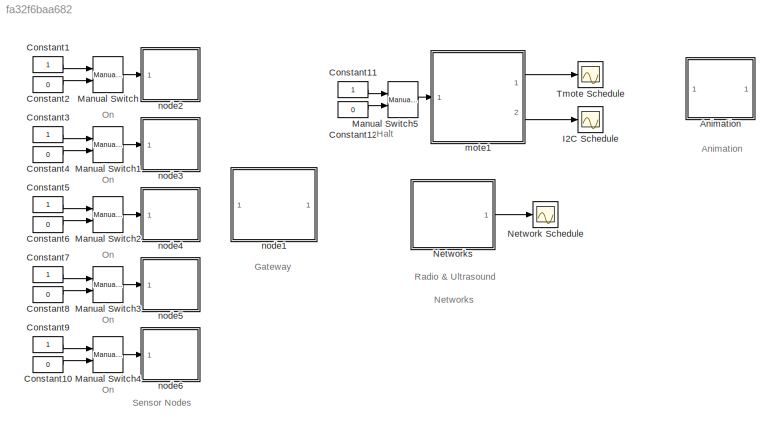
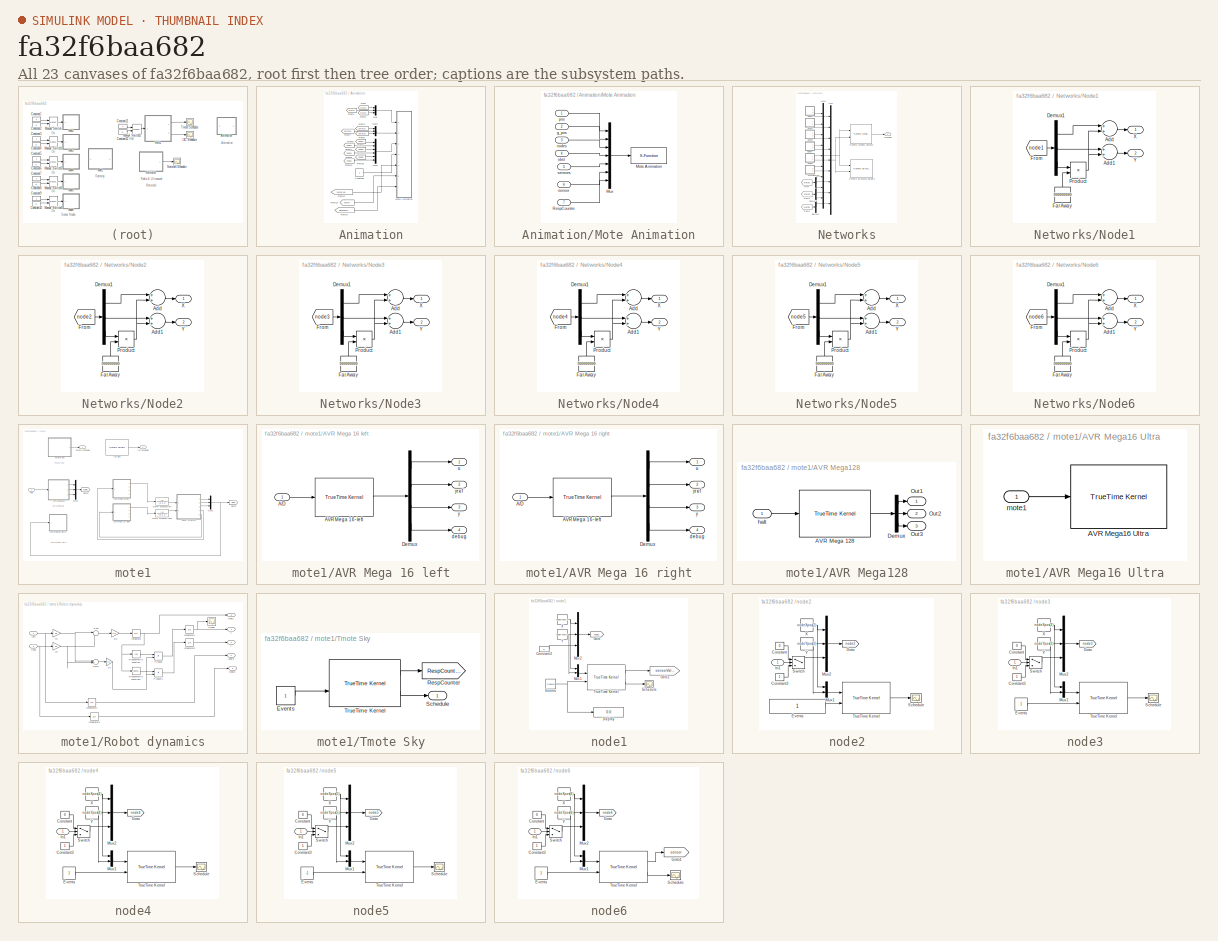
[diagram: thumbnail index - all 23 canvases of the model, root first then tree order]
MODEL slx_fa32f6baa682
KIND model
CONFIG InitFcn = init
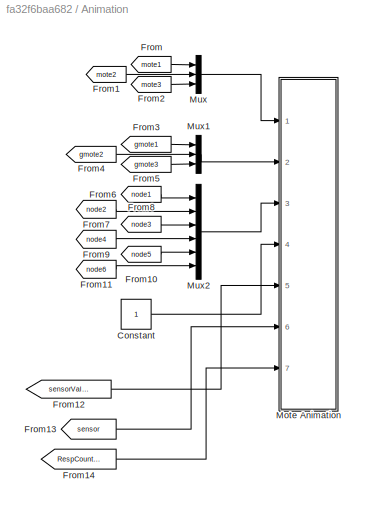
BLOCK [SubSystem] Animation
  FunctionWithSeparateData = off
  MaskHideContents = off
  MinAlgLoopOccurrences = off
  Opaque = off
  Ports = []
  PropExecContextOutsideSubsystem = off
  RTWSystemCode = Auto
  RequestExecContextInheritance = off
BLOCK [Constant] Animation/Constant
BLOCK [From] Animation/From
  CloseFcn = tagdialog Close
  GotoTag = mote1
  TagVisibility = global
BLOCK [From] Animation/From1
  CloseFcn = tagdialog Close
  GotoTag = mote2
BLOCK [From] Animation/From10
  CloseFcn = tagdialog Close
  GotoTag = node5
  TagVisibility = global
BLOCK [From] Animation/From11
  CloseFcn = tagdialog Close
  GotoTag = node6
  TagVisibility = global
BLOCK [From] Animation/From12
  CloseFcn = tagdialog Close
  GotoTag = sensorValues
  TagVisibility = global
BLOCK [From] Animation/From13
  CloseFcn = tagdialog Close
  GotoTag = sensor
  TagVisibility = global
BLOCK [From] Animation/From14
  CloseFcn = tagdialog Close
  GotoTag = RespCounter
  TagVisibility = global
BLOCK [From] Animation/From2
  CloseFcn = tagdialog Close
  GotoTag = mote3
BLOCK [From] Animation/From3
  CloseFcn = tagdialog Close
  GotoTag = gmote1
  TagVisibility = global
BLOCK [From] Animation/From4
  CloseFcn = tagdialog Close
  GotoTag = gmote2
BLOCK [From] Animation/From5
  CloseFcn = tagdialog Close
  GotoTag = gmote3
BLOCK [From] Animation/From6
  CloseFcn = tagdialog Close
  GotoTag = node1
  TagVisibility = global
BLOCK [From] Animation/From7
  CloseFcn = tagdialog Close
  GotoTag = node2
  TagVisibility = global
BLOCK [From] Animation/From8
  CloseFcn = tagdialog Close
  GotoTag = node3
  TagVisibility = global
BLOCK [From] Animation/From9
  CloseFcn = tagdialog Close
  GotoTag = node4
  TagVisibility = global
BLOCK [SubSystem] Animation/Mote Animation
  FunctionWithSeparateData = off
  MaskCallbackString = |||
  MaskEnableString = on,on,on,on
  MaskHideContents = off
  MaskIconFrame = on
  MaskIconOpaque = on
  MaskIconRotate = none
  MaskIconUnits = autoscale
  MaskPortRotate = default
  MaskPromptString = Number of Motes|xMax|YMax|Update period
  MaskStyleString = edit,edit,edit,edit
  MaskToolTipString = on,on,on,on
  MaskTunableValueString = on,on,on,on
  MaskValueString = nbrOfMotes|trackLength|trackWidth|0.1
  MaskVariables = numMotes=@1;xmax=@2;ymax=@3;ts=@4;
  MaskVisibilityString = on,on,on,on
  MinAlgLoopOccurrences = off
  Opaque = off
  Ports = [7]
  PropExecContextOutsideSubsystem = off
  RTWSystemCode = Auto
  RequestExecContextInheritance = off
BLOCK [S-Function] Animation/Mote Animation/Mote Animation
  DeleteFcn = if ~isempty(findobj('type','figure','name','dblpend1 Animation'));close('dblpend1 Animation'); end;
  EnableBusSupport = off
  FunctionName = moteanimation
  Parameters = [numMotes ts xmax ymax]
  Ports = [1]
BLOCK [Mux] Animation/Mote Animation/Mux
  DisplayOption = bar
  Inputs = 7
  Ports = [7, 1]
BLOCK [Inport] Animation/Mote Animation/RespCounter
  IconDisplay = Port number
  Port = 7
BLOCK [Inport] Animation/Mote Animation/g_pos
  IconDisplay = Port number
  Port = 2
BLOCK [Inport] Animation/Mote Animation/nodes
  IconDisplay = Port number
  Port = 3
BLOCK [Inport] Animation/Mote Animation/obst
  IconDisplay = Port number
  Port = 4
BLOCK [Inport] Animation/Mote Animation/pos
  IconDisplay = Port number
BLOCK [Inport] Animation/Mote Animation/sensor
  IconDisplay = Port number
  Port = 6
BLOCK [Inport] Animation/Mote Animation/sensors
  IconDisplay = Port number
  Port = 5
BLOCK [Mux] Animation/Mux
  DisplayOption = bar
  Inputs = [3 3 3]
  Ports = [3, 1]
BLOCK [Mux] Animation/Mux1
  DisplayOption = bar
  Inputs = [3 3 3]
  Ports = [3, 1]
BLOCK [Mux] Animation/Mux2
  DisplayOption = bar
  Inputs = 6
  Ports = [6, 1]
BLOCK [Constant] Constant1
BLOCK [Constant] Constant10
  Value = 0
BLOCK [Constant] Constant11
BLOCK [Constant] Constant12
  Value = 0
BLOCK [Constant] Constant2
  Value = 0
BLOCK [Constant] Constant3
BLOCK [Constant] Constant4
  Value = 0
BLOCK [Constant] Constant5
BLOCK [Constant] Constant6
  Value = 0
BLOCK [Constant] Constant7
BLOCK [Constant] Constant8
  Value = 0
BLOCK [Constant] Constant9
BLOCK [Scope] I2C Schedule
  DataFormat = StructureWithTime
  Floating = off
  LimitDataPoints = off
  NumInputPorts = 1
  Ports = [1]
  SaveName = nschedule1
  ShowLegends = off
  TimeRange = 5
  YMax = 5.5
  YMin = 1
  ZoomMode = xonly
BLOCK [Reference] Manual Switch  REF=simulink/Signal
Routing/Manual Switch
  Ports = [2, 1]
  SourceBlock = simulink/Signal\nRouting/Manual Switch
  SourceType = Manual Switch
  action = 0
  sw = 1
  varsize = off
BLOCK [Reference] Manual Switch1  REF=simulink/Signal
Routing/Manual Switch
  Ports = [2, 1]
  SourceBlock = simulink/Signal\nRouting/Manual Switch
  SourceType = Manual Switch
  action = 0
  sw = 1
  varsize = off
BLOCK [Reference] Manual Switch2  REF=simulink/Signal
Routing/Manual Switch
  Ports = [2, 1]
  SourceBlock = simulink/Signal\nRouting/Manual Switch
  SourceType = Manual Switch
  action = 0
  sw = 1
  varsize = off
BLOCK [Reference] Manual Switch3  REF=simulink/Signal
Routing/Manual Switch
  Ports = [2, 1]
  SourceBlock = simulink/Signal\nRouting/Manual Switch
  SourceType = Manual Switch
  action = 0
  sw = 1
  varsize = off
BLOCK [Reference] Manual Switch4  REF=simulink/Signal
Routing/Manual Switch
  Ports = [2, 1]
  SourceBlock = simulink/Signal\nRouting/Manual Switch
  SourceType = Manual Switch
  action = 0
  sw = 1
  varsize = off
BLOCK [Reference] Manual Switch5  REF=simulink/Signal
Routing/Manual Switch
  Ports = [2, 1]
  SourceBlock = simulink/Signal\nRouting/Manual Switch
  SourceType = Manual Switch
  action = 0
  sw = 1
  varsize = off
BLOCK [Scope] Network Schedule
  DataFormat = StructureWithTime
  Floating = off
  LimitDataPoints = off
  NumInputPorts = 1
  Ports = [1]
  SaveName = nschedule
  ShowLegends = off
  TimeRange = 5
  YMax = 9
  YMin = 1
  ZoomMode = xonly
BLOCK [SubSystem] Networks
  FunctionWithSeparateData = off
  MaskHideContents = off
  MinAlgLoopOccurrences = off
  Opaque = off
  Ports = [0, 1]
  PropExecContextOutsideSubsystem = off
  RTWSystemCode = Auto
  RequestExecContextInheritance = off
BLOCK [Demux] Networks/Demux2
  Outputs = 3
  Ports = [1, 3]
BLOCK [Demux] Networks/Demux3
  Outputs = 3
  Ports = [1, 3]
BLOCK [Demux] Networks/Demux4
  Outputs = 3
  Ports = [1, 3]
BLOCK [From] Networks/From
  CloseFcn = tagdialog Close
  GotoTag = mote1
  TagVisibility = global
BLOCK [From] Networks/From5
  CloseFcn = tagdialog Close
  GotoTag = mote2
BLOCK [From] Networks/From6
  CloseFcn = tagdialog Close
  GotoTag = mote3
BLOCK [Mux] Networks/Mux
  DisplayOption = bar
  Inputs = 9
  Ports = [9, 1]
BLOCK [Mux] Networks/Mux1
  DisplayOption = bar
  Inputs = 9
  Ports = [9, 1]
BLOCK [SubSystem] Networks/Node1
  FunctionWithSeparateData = off
  MaskEnableString = on
  MaskHideContents = off
  MaskIconFrame = on
  MaskIconOpaque = on
  MaskIconRotate = none
  MaskIconUnits = autoscale
  MaskInitialization = set_param(strcat(gcb,'/From'),'GotoTag',strcat('node',num2str(nodeNbr)));
  MaskPortRotate = default
  MaskPromptString = nodeNbr
  MaskStyleString = edit
  MaskToolTipString = on
  MaskTunableValueString = on
  MaskValueString = 1
  MaskVariables = nodeNbr=@1;
  MaskVisibilityString = on
  MinAlgLoopOccurrences = off
  Opaque = off
  Ports = [0, 2]
  PropExecContextOutsideSubsystem = off
  RTWSystemCode = Auto
  RequestExecContextInheritance = off
BLOCK [Sum] Networks/Node1/Add
  Ports = [2, 1]
  SaturateOnIntegerOverflow = off
BLOCK [Sum] Networks/Node1/Add1
  Ports = [2, 1]
  SaturateOnIntegerOverflow = off
BLOCK [Demux] Networks/Node1/Demux1
  Outputs = 3
  Ports = [1, 3]
BLOCK [Constant] Networks/Node1/FarAway
  Value = 999999999
BLOCK [From] Networks/Node1/From
  CloseFcn = tagdialog Close
  GotoTag = node1
  TagVisibility = global
BLOCK [Product] Networks/Node1/Product
  Ports = [2, 1]
  SaturateOnIntegerOverflow = off
BLOCK [Outport] Networks/Node1/X
  IconDisplay = Port number
BLOCK [Outport] Networks/Node1/Y
  IconDisplay = Port number
  Port = 2
BLOCK [SubSystem] Networks/Node2
  FunctionWithSeparateData = off
  MaskEnableString = on
  MaskHideContents = off
  MaskIconFrame = on
  MaskIconOpaque = on
  MaskIconRotate = none
  MaskIconUnits = autoscale
  MaskInitialization = set_param(strcat(gcb,'/From'),'GotoTag',strcat('node',num2str(nodeNbr)));
  MaskPortRotate = default
  MaskPromptString = nodeNbr
  MaskStyleString = edit
  MaskToolTipString = on
  MaskTunableValueString = on
  MaskValueString = 2
  MaskVariables = nodeNbr=@1;
  MaskVisibilityString = on
  MinAlgLoopOccurrences = off
  Opaque = off
  Ports = [0, 2]
  PropExecContextOutsideSubsystem = off
  RTWSystemCode = Auto
  RequestExecContextInheritance = off
BLOCK [Sum] Networks/Node2/Add
  Ports = [2, 1]
  SaturateOnIntegerOverflow = off
BLOCK [Sum] Networks/Node2/Add1
  Ports = [2, 1]
  SaturateOnIntegerOverflow = off
BLOCK [Demux] Networks/Node2/Demux1
  Outputs = 3
  Ports = [1, 3]
BLOCK [Constant] Networks/Node2/FarAway
  Value = 999999999
BLOCK [From] Networks/Node2/From
  CloseFcn = tagdialog Close
  GotoTag = node2
  TagVisibility = global
BLOCK [Product] Networks/Node2/Product
  Ports = [2, 1]
  SaturateOnIntegerOverflow = off
BLOCK [Outport] Networks/Node2/X
  IconDisplay = Port number
BLOCK [Outport] Networks/Node2/Y
  IconDisplay = Port number
  Port = 2
BLOCK [SubSystem] Networks/Node3
  FunctionWithSeparateData = off
  MaskEnableString = on
  MaskHideContents = off
  MaskIconFrame = on
  MaskIconOpaque = on
  MaskIconRotate = none
  MaskIconUnits = autoscale
  MaskInitialization = set_param(strcat(gcb,'/From'),'GotoTag',strcat('node',num2str(nodeNbr)));
  MaskPortRotate = default
  MaskPromptString = nodeNbr
  MaskStyleString = edit
  MaskToolTipString = on
  MaskTunableValueString = on
  MaskValueString = 3
  MaskVariables = nodeNbr=@1;
  MaskVisibilityString = on
  MinAlgLoopOccurrences = off
  Opaque = off
  Ports = [0, 2]
  PropExecContextOutsideSubsystem = off
  RTWSystemCode = Auto
  RequestExecContextInheritance = off
BLOCK [Sum] Networks/Node3/Add
  Ports = [2, 1]
  SaturateOnIntegerOverflow = off
BLOCK [Sum] Networks/Node3/Add1
  Ports = [2, 1]
  SaturateOnIntegerOverflow = off
BLOCK [Demux] Networks/Node3/Demux1
  Outputs = 3
  Ports = [1, 3]
BLOCK [Constant] Networks/Node3/FarAway
  Value = 999999999
BLOCK [From] Networks/Node3/From
  CloseFcn = tagdialog Close
  GotoTag = node3
  TagVisibility = global
BLOCK [Product] Networks/Node3/Product
  Ports = [2, 1]
  SaturateOnIntegerOverflow = off
BLOCK [Outport] Networks/Node3/X
  IconDisplay = Port number
BLOCK [Outport] Networks/Node3/Y
  IconDisplay = Port number
  Port = 2
BLOCK [SubSystem] Networks/Node4
  FunctionWithSeparateData = off
  MaskEnableString = on
  MaskHideContents = off
  MaskIconFrame = on
  MaskIconOpaque = on
  MaskIconRotate = none
  MaskIconUnits = autoscale
  MaskInitialization = set_param(strcat(gcb,'/From'),'GotoTag',strcat('node',num2str(nodeNbr)));
  MaskPortRotate = default
  MaskPromptString = nodeNbr
  MaskStyleString = edit
  MaskToolTipString = on
  MaskTunableValueString = on
  MaskValueString = 4
  MaskVariables = nodeNbr=@1;
  MaskVisibilityString = on
  MinAlgLoopOccurrences = off
  Opaque = off
  Ports = [0, 2]
  PropExecContextOutsideSubsystem = off
  RTWSystemCode = Auto
  RequestExecContextInheritance = off
BLOCK [Sum] Networks/Node4/Add
  Ports = [2, 1]
  SaturateOnIntegerOverflow = off
BLOCK [Sum] Networks/Node4/Add1
  Ports = [2, 1]
  SaturateOnIntegerOverflow = off
BLOCK [Demux] Networks/Node4/Demux1
  Outputs = 3
  Ports = [1, 3]
BLOCK [Constant] Networks/Node4/FarAway
  Value = 999999999
BLOCK [From] Networks/Node4/From
  CloseFcn = tagdialog Close
  GotoTag = node4
  TagVisibility = global
BLOCK [Product] Networks/Node4/Product
  Ports = [2, 1]
  SaturateOnIntegerOverflow = off
BLOCK [Outport] Networks/Node4/X
  IconDisplay = Port number
BLOCK [Outport] Networks/Node4/Y
  IconDisplay = Port number
  Port = 2
BLOCK [SubSystem] Networks/Node5
  FunctionWithSeparateData = off
  MaskEnableString = on
  MaskHideContents = off
  MaskIconFrame = on
  MaskIconOpaque = on
  MaskIconRotate = none
  MaskIconUnits = autoscale
  MaskInitialization = set_param(strcat(gcb,'/From'),'GotoTag',strcat('node',num2str(nodeNbr)));
  MaskPortRotate = default
  MaskPromptString = nodeNbr
  MaskStyleString = edit
  MaskToolTipString = on
  MaskTunableValueString = on
  MaskValueString = 5
  MaskVariables = nodeNbr=@1;
  MaskVisibilityString = on
  MinAlgLoopOccurrences = off
  Opaque = off
  Ports = [0, 2]
  PropExecContextOutsideSubsystem = off
  RTWSystemCode = Auto
  RequestExecContextInheritance = off
BLOCK [Sum] Networks/Node5/Add
  Ports = [2, 1]
  SaturateOnIntegerOverflow = off
BLOCK [Sum] Networks/Node5/Add1
  Ports = [2, 1]
  SaturateOnIntegerOverflow = off
BLOCK [Demux] Networks/Node5/Demux1
  Outputs = 3
  Ports = [1, 3]
BLOCK [Constant] Networks/Node5/FarAway
  Value = 999999999
BLOCK [From] Networks/Node5/From
  CloseFcn = tagdialog Close
  GotoTag = node5
  TagVisibility = global
BLOCK [Product] Networks/Node5/Product
  Ports = [2, 1]
  SaturateOnIntegerOverflow = off
BLOCK [Outport] Networks/Node5/X
  IconDisplay = Port number
BLOCK [Outport] Networks/Node5/Y
  IconDisplay = Port number
  Port = 2
BLOCK [SubSystem] Networks/Node6
  FunctionWithSeparateData = off
  MaskEnableString = on
  MaskHideContents = off
  MaskIconFrame = on
  MaskIconOpaque = on
  MaskIconRotate = none
  MaskIconUnits = autoscale
  MaskInitialization = set_param(strcat(gcb,'/From'),'GotoTag',strcat('node',num2str(nodeNbr)));
  MaskPortRotate = default
  MaskPromptString = nodeNbr
  MaskStyleString = edit
  MaskToolTipString = on
  MaskTunableValueString = on
  MaskValueString = 6
  MaskVariables = nodeNbr=@1;
  MaskVisibilityString = on
  MinAlgLoopOccurrences = off
  Opaque = off
  Ports = [0, 2]
  PropExecContextOutsideSubsystem = off
  RTWSystemCode = Auto
  RequestExecContextInheritance = off
BLOCK [Sum] Networks/Node6/Add
  Ports = [2, 1]
  SaturateOnIntegerOverflow = off
BLOCK [Sum] Networks/Node6/Add1
  Ports = [2, 1]
  SaturateOnIntegerOverflow = off
BLOCK [Demux] Networks/Node6/Demux1
  Outputs = 3
  Ports = [1, 3]
BLOCK [Constant] Networks/Node6/FarAway
  Value = 999999999
BLOCK [From] Networks/Node6/From
  CloseFcn = tagdialog Close
  GotoTag = node6
  TagVisibility = global
BLOCK [Product] Networks/Node6/Product
  Ports = [2, 1]
  SaturateOnIntegerOverflow = off
BLOCK [Outport] Networks/Node6/X
  IconDisplay = Port number
BLOCK [Outport] Networks/Node6/Y
  IconDisplay = Port number
  Port = 2
BLOCK [Outport] Networks/Schedule
  IconDisplay = Port number
BLOCK [Reference] Networks/TrueTime Ultrasound Network  REF=truetime/TrueTime Ultrasound  (lib defined in slx_0362a698a4ec)
Network
  Ports = [2]
  SourceBlock = truetime/TrueTime Ultrasound\nNetwork
  SourceType = Ultrasound Network
  nnodes = 9
  nwnbr = 2
  pinglength = 0.0
  reach = 260
  scheduleoutput = off
  speedofsound = 34400.0
BLOCK [Reference] Networks/TrueTime Wireless Network  REF=truetime/TrueTime Wireless   (lib defined in slx_0362a698a4ec)
Network
  Ports = [2, 1]
  SourceBlock = truetime/TrueTime Wireless \nNetwork
  SourceType = Wireless Network
  acktimeout = 0.000864
  error_threshold = errorCodingThreshold
  lossprob = 0
  minsize = 248
  nnodes = 9
  nwnbr = 1
  nwtype = 802.11b (WLAN)
  pathloss = pathloss
  poweroutput = off
  rate = 250000
  retrylimit = 3
  scheduleoutput = on
  seed = 0
  threshold = receiverThreshold
  transpower = transmitPower
  use_pathloss_function = default
BLOCK [Scope] Tmote Schedule
  DataFormat = StructureWithTime
  Floating = off
  LimitDataPoints = off
  NumInputPorts = 1
  Ports = [1]
  SaveName = nschedule2
  ShowLegends = off
  TimeRange = 5
  YMax = 9
  YMin = 1
  ZoomMode = xonly
BLOCK [SubSystem] mote1
  FunctionWithSeparateData = off
  MaskDisplay = image(imread('RBBot.jpg'))
  MaskEnableString = on
  MaskHideContents = off
  MaskIconFrame = on
  MaskIconOpaque = on
  MaskIconRotate = none
  MaskIconUnits = autoscale
  MaskPortRotate = default
  MaskPromptString = moteNbr
  MaskStyleString = edit
  MaskToolTipString = on
  MaskTunableValueString = on
  MaskValueString = 1
  MaskVariables = moteNbr=@1;
  MaskVisibilityString = on
  MinAlgLoopOccurrences = off
  Opaque = off
  Ports = [1, 2]
  PropExecContextOutsideSubsystem = off
  RTWSystemCode = Auto
  RequestExecContextInheritance = off
BLOCK [SubSystem] mote1/AVR Mega 16 left
  FunctionWithSeparateData = off
  MaskDisplay = image(imread('mega16.jpg'))
  MaskHideContents = off
  MaskIconFrame = on
  MaskIconOpaque = on
  MaskIconRotate = none
  MaskIconUnits = autoscale
  MaskPortRotate = default
  MinAlgLoopOccurrences = off
  Opaque = off
  Ports = [1, 4]
  PropExecContextOutsideSubsystem = off
  RTWSystemCode = Auto
  RequestExecContextInheritance = off
BLOCK [Inport] mote1/AVR Mega 16 left/A//D
  IconDisplay = Port number
BLOCK [Reference] mote1/AVR Mega 16 left/AVR Mega 16-left  REF=truetime/TrueTime Kernel  (lib defined in slx_0362a698a4ec)
  Ports = [1, 1]
  SourceBlock = truetime/TrueTime Kernel
  SourceType = Unknown
  args = 1
  battery = off
  clockoffsetdrift = [0 0]
  label = 3: 2
  ninputsoutputs = [1 4]
  ntriggers = 0
  nwnodenbr = [3 2]
  poweroutput = off
  schedoutput = off
  sfun = left_init
  trigtype = falling
BLOCK [Demux] mote1/AVR Mega 16 left/Demux
  Ports = [1, 4]
BLOCK [Outport] mote1/AVR Mega 16 left/debug
  IconDisplay = Port number
  Port = 4
BLOCK [Outport] mote1/AVR Mega 16 left/u
  IconDisplay = Port number
BLOCK [Outport] mote1/AVR Mega 16 left/y
  IconDisplay = Port number
  Port = 3
BLOCK [Outport] mote1/AVR Mega 16 left/yref
  IconDisplay = Port number
  Port = 2
BLOCK [SubSystem] mote1/AVR Mega 16 right
  FunctionWithSeparateData = off
  MaskDisplay = image(imread('mega16.jpg'))
  MaskHideContents = off
  MaskIconFrame = on
  MaskIconOpaque = on
  MaskIconRotate = none
  MaskIconUnits = autoscale
  MaskPortRotate = default
  MinAlgLoopOccurrences = off
  Opaque = off
  Ports = [1, 4]
  PropExecContextOutsideSubsystem = off
  RTWSystemCode = Auto
  RequestExecContextInheritance = off
BLOCK [Inport] mote1/AVR Mega 16 right/A//D
  IconDisplay = Port number
BLOCK [Reference] mote1/AVR Mega 16 right/AVR Mega 16-left  REF=truetime/TrueTime Kernel  (lib defined in slx_0362a698a4ec)
  Ports = [1, 1]
  SourceBlock = truetime/TrueTime Kernel
  SourceType = Unknown
  args = 1
  battery = off
  clockoffsetdrift = [0 0]
  label = 3: 3
  ninputsoutputs = [1 4]
  ntriggers = 0
  nwnodenbr = [3 3]
  poweroutput = off
  schedoutput = off
  sfun = right_init
  trigtype = falling
BLOCK [Demux] mote1/AVR Mega 16 right/Demux
  Ports = [1, 4]
BLOCK [Outport] mote1/AVR Mega 16 right/debug
  IconDisplay = Port number
  Port = 4
BLOCK [Outport] mote1/AVR Mega 16 right/u
  IconDisplay = Port number
BLOCK [Outport] mote1/AVR Mega 16 right/y
  IconDisplay = Port number
  Port = 3
BLOCK [Outport] mote1/AVR Mega 16 right/yref
  IconDisplay = Port number
  Port = 2
BLOCK [SubSystem] mote1/AVR Mega128
  FunctionWithSeparateData = off
  MaskDisplay = image(imread('mega128.jpg'))
  MaskHideContents = off
  MaskIconFrame = on
  MaskIconOpaque = on
  MaskIconRotate = none
  MaskIconUnits = autoscale
  MaskPortRotate = default
  MinAlgLoopOccurrences = off
  Opaque = off
  Ports = [1, 3]
  PropExecContextOutsideSubsystem = off
  RTWSystemCode = Auto
  RequestExecContextInheritance = off
BLOCK [Reference] mote1/AVR Mega128/AVR Mega 128  REF=truetime/TrueTime Kernel  (lib defined in slx_0362a698a4ec)
  Ports = [1, 1]
  SourceBlock = truetime/TrueTime Kernel
  SourceType = Unknown
  args = 1
  battery = off
  clockoffsetdrift = [0 0]
  label = 3: 4
  ninputsoutputs = [1 3]
  ntriggers = 0
  nwnodenbr = [3 4]
  poweroutput = off
  schedoutput = off
  sfun = mega128_init
  trigtype = falling
BLOCK [Demux] mote1/AVR Mega128/Demux
  Outputs = 3
  Ports = [1, 3]
BLOCK [Outport] mote1/AVR Mega128/Out1
  IconDisplay = Port number
BLOCK [Outport] mote1/AVR Mega128/Out2
  IconDisplay = Port number
  Port = 2
BLOCK [Outport] mote1/AVR Mega128/Out3
  IconDisplay = Port number
  Port = 3
BLOCK [Inport] mote1/AVR Mega128/halt
  IconDisplay = Port number
BLOCK [SubSystem] mote1/AVR Mega16 Ultra
  FunctionWithSeparateData = off
  MaskDisplay = image(imread('mega16.jpg'))
  MaskHideContents = off
  MaskIconFrame = on
  MaskIconOpaque = on
  MaskIconRotate = none
  MaskIconUnits = autoscale
  MaskPortRotate = default
  MinAlgLoopOccurrences = off
  Opaque = off
  Ports = [1]
  PropExecContextOutsideSubsystem = off
  RTWSystemCode = Auto
  RequestExecContextInheritance = off
BLOCK [Reference] mote1/AVR Mega16 Ultra/AVR Mega16 Ultra  REF=truetime/TrueTime Kernel  (lib defined in slx_0362a698a4ec)
  Ports = [1, 1]
  SourceBlock = truetime/TrueTime Kernel
  SourceType = Unknown
  args = 1
  battery = off
  clockoffsetdrift = [0 0]
  label = 2: 7\n3: 5
  ninputsoutputs = [3 1]
  ntriggers = 0
  nwnodenbr = [2 7; 3 5]
  poweroutput = off
  schedoutput = off
  sfun = megaultra_init
  trigtype = falling
BLOCK [Inport] mote1/AVR Mega16 Ultra/mote1
  IconDisplay = Port number
BLOCK [Goto] mote1/Goto2
  GotoTag = mote1
  TagVisibility = global
BLOCK [Goto] mote1/Goto3
  GotoTag = gmote1
  TagVisibility = global
BLOCK [Reference] mote1/I2C Bus  REF=truetime/TrueTime Network  (lib defined in slx_0362a698a4ec)
  NIT = 0
  Ports = [0, 1]
  QSortMode = FIFO
  SourceBlock = truetime/TrueTime Network
  SourceType = Real-Time Network
  bandwidths = [0.5 0.5]
  buftype = Common buffer
  dynSchedule = 0
  irtSchedule = 0
  lossprob = 0
  memsize = 80000
  miniSlotSize = 0
  minsize = 512
  nnodes = 5
  nodeGraph = 0
  nrtLength = 0
  nwnbr = 3
  nwtype = CSMA/CD (Ethernet)
  overflow = Retransmit
  rate = 10000000
  schedule = [1 1 2]
  scheduleoutput = on
  seed = 0
  slotsize = 512
  sync = 0
BLOCK [Outport] mote1/I2C Schedule
  IconDisplay = Port number
  Port = 2
BLOCK [TransferFcn] mote1/Motor dynamics left
  Denominator = [0.3 1]
BLOCK [TransferFcn] mote1/Motor dynamics right
  Denominator = [0.3 1]
BLOCK [Mux] mote1/Mux3
  DisplayOption = bar
  Inputs = 3
  Ports = [3, 1]
BLOCK [Mux] mote1/Mux4
  DisplayOption = bar
  Inputs = 3
  Ports = [3, 1]
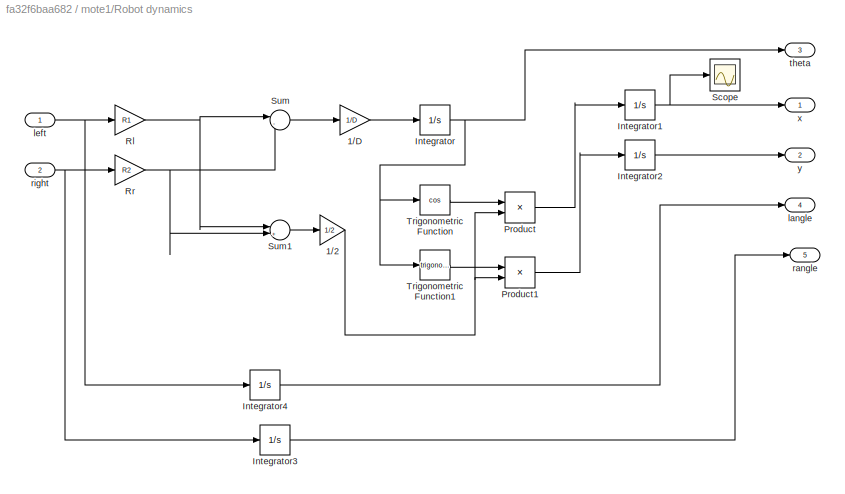
BLOCK [SubSystem] mote1/Robot dynamics
  FunctionWithSeparateData = off
  MaskDisplay = image(imread('model.png'))
  MaskHideContents = off
  MaskIconFrame = on
  MaskIconOpaque = on
  MaskIconRotate = none
  MaskIconUnits = autoscale
  MaskPortRotate = default
  MinAlgLoopOccurrences = off
  Opaque = off
  Ports = [2, 5]
  PropExecContextOutsideSubsystem = off
  RTWSystemCode = Auto
  RequestExecContextInheritance = off
  TreatAsAtomicUnit = on
BLOCK [Gain] mote1/Robot dynamics/1//2
  Gain = 1/2
  SaturateOnIntegerOverflow = off
BLOCK [Gain] mote1/Robot dynamics/1//D
  Gain = 1/D
  SaturateOnIntegerOverflow = off
BLOCK [Integrator] mote1/Robot dynamics/Integrator
  Ports = [1, 1]
BLOCK [Integrator] mote1/Robot dynamics/Integrator1
  Ports = [1, 1]
BLOCK [Integrator] mote1/Robot dynamics/Integrator2
  Ports = [1, 1]
BLOCK [Integrator] mote1/Robot dynamics/Integrator3
  Ports = [1, 1]
BLOCK [Integrator] mote1/Robot dynamics/Integrator4
  Ports = [1, 1]
BLOCK [Product] mote1/Robot dynamics/Product
  Ports = [2, 1]
  SaturateOnIntegerOverflow = off
BLOCK [Product] mote1/Robot dynamics/Product1
  Ports = [2, 1]
  SaturateOnIntegerOverflow = off
BLOCK [Gain] mote1/Robot dynamics/Rl
  Gain = R1
  SaturateOnIntegerOverflow = off
BLOCK [Gain] mote1/Robot dynamics/Rr
  Gain = R2
  SaturateOnIntegerOverflow = off
BLOCK [Scope] mote1/Robot dynamics/Scope
  DataFormat = StructureWithTime
  Floating = off
  NumInputPorts = 1
  Ports = [1]
  SaveName = ScopeData3
  ShowLegends = off
  TimeRange = 100
  YMax = 550
  YMin = 0
BLOCK [Sum] mote1/Robot dynamics/Sum
  IconShape = round
  Inputs = |-+
  Ports = [2, 1]
  SaturateOnIntegerOverflow = off
BLOCK [Sum] mote1/Robot dynamics/Sum1
  IconShape = round
  Inputs = |++
  Ports = [2, 1]
  SaturateOnIntegerOverflow = off
BLOCK [Trigonometry] mote1/Robot dynamics/Trigonometric Function
  Operator = cos
  Ports = [1, 1]
BLOCK [Trigonometry] mote1/Robot dynamics/Trigonometric Function1
  Ports = [1, 1]
BLOCK [Outport] mote1/Robot dynamics/langle
  IconDisplay = Port number
  Port = 4
BLOCK [Inport] mote1/Robot dynamics/left
  IconDisplay = Port number
BLOCK [Outport] mote1/Robot dynamics/rangle
  IconDisplay = Port number
  Port = 5
BLOCK [Inport] mote1/Robot dynamics/right
  IconDisplay = Port number
  Port = 2
BLOCK [Outport] mote1/Robot dynamics/theta
  IconDisplay = Port number
  Port = 3
BLOCK [Outport] mote1/Robot dynamics/x
  IconDisplay = Port number
BLOCK [Outport] mote1/Robot dynamics/y
  IconDisplay = Port number
  Port = 2
BLOCK [Outport] mote1/Tmote Schedule
  IconDisplay = Port number
BLOCK [SubSystem] mote1/Tmote Sky
  FunctionWithSeparateData = off
  MaskDisplay = image(imread('Tmote.jpg'))
  MaskHideContents = off
  MaskIconFrame = on
  MaskIconOpaque = on
  MaskIconRotate = none
  MaskIconUnits = autoscale
  MaskPortRotate = default
  MinAlgLoopOccurrences = off
  Opaque = off
  Ports = [0, 1]
  PropExecContextOutsideSubsystem = off
  RTWSystemCode = Auto
  RequestExecContextInheritance = off
BLOCK [Constant] mote1/Tmote Sky/Events
BLOCK [Goto] mote1/Tmote Sky/RespCounter
  GotoTag = RespCounter
  TagVisibility = global
BLOCK [Outport] mote1/Tmote Sky/Schedule
  IconDisplay = Port number
BLOCK [Reference] mote1/Tmote Sky/TrueTime Kernel  REF=truetime/TrueTime Kernel  (lib defined in slx_0362a698a4ec)
  Ports = [2, 2]
  SourceBlock = truetime/TrueTime Kernel
  SourceType = Unknown
  args = 1
  battery = off
  clockoffsetdrift = [0 0]
  label = 1: 7\n3: 1
  ninputsoutputs = [1 1]
  ntriggers = 1
  nwnodenbr = [1 7; 3 1]
  poweroutput = off
  schedoutput = on
  sfun = tmote_init
  trigtype = falling
BLOCK [Inport] mote1/halt
  IconDisplay = Port number
BLOCK [SubSystem] node1
  FunctionWithSeparateData = off
  MaskDisplay = image(imread('gateway.jpg'))
  MaskEnableString = on
  MaskHideContents = off
  MaskIconFrame = on
  MaskIconOpaque = on
  MaskIconRotate = none
  MaskIconUnits = autoscale
  MaskInitialization = set_param(strcat(gcb,'/Goto'),'GotoTag',strcat('node',num2str(nodeNbr)));\nset_param(strcat(gcb,'/X'),'Value',strcat('nodeXpos(',strcat(num2str(nodeNbr), ')')));\nset_param(strcat(gcb,'/Y'),'Value',strcat('nodeYpos(',strcat(num2str(nodeNbr), ')')));  <repeated x6 — deduplicated; at blocks: node1, node2, node3, node4, node5, node6>
  MaskPortRotate = default
  MaskPromptString = nodeNbr
  MaskStyleString = edit
  MaskToolTipString = on
  MaskTunableValueString = on
  MaskValueString = 1
  MaskVariables = nodeNbr=@1;
  MaskVisibilityString = on
  MinAlgLoopOccurrences = off
  Opaque = off
  Ports = []
  PropExecContextOutsideSubsystem = off
  RTWSystemCode = Auto
  RequestExecContextInheritance = off
BLOCK [Constant] node1/Constant2
  Value = 0
BLOCK [Display] node1/Display
  Decimation = 1
  Lockdown = off
  Ports = [1]
BLOCK [Constant] node1/Events
  Value = -0.66144
BLOCK [Goto] node1/Goto
  GotoTag = node1
  TagVisibility = global
BLOCK [Goto] node1/Goto2
  GotoTag = sensorValues
  TagVisibility = global
BLOCK [Mux] node1/Mux1
  DisplayOption = bar
  Inputs = 2
  Ports = [2, 1]
BLOCK [Mux] node1/Mux2
  DisplayOption = bar
  Inputs = 3
  Ports = [3, 1]
BLOCK [Scope] node1/Schedule
  Floating = off
  LimitDataPoints = off
  NumInputPorts = 1
  Ports = [1]
  ShowLegends = off
  TickLabels = on
  TimeRange = 3.5
  YMax = 9.5
  YMin = 0
  ZoomMode = xonly
BLOCK [Reference] node1/TrueTime Kernel  REF=truetime/TrueTime Kernel  (lib defined in slx_0362a698a4ec)
  Ports = [2, 2]
  SourceBlock = truetime/TrueTime Kernel
  SourceType = Unknown
  args = nodeNbr
  battery = off
  clockoffsetdrift = [0 0]
  ninputsoutputs = [2 5]
  ntriggers = 1
  nwnodenbr = [1 nodeNbr; 2 nodeNbr]
  poweroutput = off
  schedoutput = on
  sfun = node_init
  trigtype = falling
BLOCK [Constant] node1/X
  Value = nodeXpos(1)
BLOCK [Constant] node1/Y
  Value = nodeYpos(1)
BLOCK [SubSystem] node2
  FunctionWithSeparateData = off
  MaskDisplay = image(imread('mote.jpg'))
  MaskEnableString = on
  MaskHideContents = off
  MaskIconFrame = on
  MaskIconOpaque = on
  MaskIconRotate = none
  MaskIconUnits = autoscale
  MaskPortRotate = default
  MaskPromptString = nodeNbr
  MaskStyleString = edit
  MaskToolTipString = on
  MaskTunableValueString = on
  MaskValueString = 2
  MaskVariables = nodeNbr=@1;
  MaskVisibilityString = on
  MinAlgLoopOccurrences = off
  Opaque = off
  Ports = [1]
  PropExecContextOutsideSubsystem = off
  RTWSystemCode = Auto
  RequestExecContextInheritance = off
BLOCK [Constant] node2/Constant
  Value = 0
BLOCK [Constant] node2/Constant3
BLOCK [Constant] node2/Events
BLOCK [Goto] node2/Goto
  GotoTag = node2
  TagVisibility = global
BLOCK [Inport] node2/In1
  IconDisplay = Port number
BLOCK [Mux] node2/Mux1
  DisplayOption = bar
  Inputs = 2
  Ports = [2, 1]
BLOCK [Mux] node2/Mux2
  DisplayOption = bar
  Inputs = 3
  Ports = [3, 1]
BLOCK [Scope] node2/Schedule
  Floating = off
  LimitDataPoints = off
  NumInputPorts = 1
  Ports = [1]
  ShowLegends = off
  TickLabels = on
  TimeRange = 3.5
  YMax = 3.7
  YMin = 1.8
  ZoomMode = xonly
BLOCK [Switch] node2/Switch
  Threshold = 0.5
BLOCK [Reference] node2/TrueTime Kernel  REF=truetime/TrueTime Kernel  (lib defined in slx_0362a698a4ec)
  Ports = [2, 1]
  SourceBlock = truetime/TrueTime Kernel
  SourceType = Unknown
  args = nodeNbr
  battery = off
  clockoffsetdrift = [0 0]
  ninputsoutputs = [2 0]
  ntriggers = 1
  nwnodenbr = [1 nodeNbr; 2 nodeNbr]
  poweroutput = off
  schedoutput = on
  sfun = node_init
  trigtype = either
BLOCK [Constant] node2/X
  Value = nodeXpos(2)
BLOCK [Constant] node2/Y
  Value = nodeYpos(2)
BLOCK [SubSystem] node3
  FunctionWithSeparateData = off
  MaskDisplay = image(imread('mote.jpg'))
  MaskEnableString = on
  MaskHideContents = off
  MaskIconFrame = on
  MaskIconOpaque = on
  MaskIconRotate = none
  MaskIconUnits = autoscale
  MaskPortRotate = default
  MaskPromptString = nodeNbr
  MaskStyleString = edit
  MaskToolTipString = on
  MaskTunableValueString = on
  MaskValueString = 3
  MaskVariables = nodeNbr=@1;
  MaskVisibilityString = on
  MinAlgLoopOccurrences = off
  Opaque = off
  Ports = [1]
  PropExecContextOutsideSubsystem = off
  RTWSystemCode = Auto
  RequestExecContextInheritance = off
BLOCK [Constant] node3/Constant
  Value = 0
BLOCK [Constant] node3/Constant3
BLOCK [Constant] node3/Events
BLOCK [Goto] node3/Goto
  GotoTag = node3
  TagVisibility = global
BLOCK [Inport] node3/In1
  IconDisplay = Port number
BLOCK [Mux] node3/Mux1
  DisplayOption = bar
  Inputs = 2
  Ports = [2, 1]
BLOCK [Mux] node3/Mux2
  DisplayOption = bar
  Inputs = 3
  Ports = [3, 1]
BLOCK [Scope] node3/Schedule
  Floating = off
  LimitDataPoints = off
  NumInputPorts = 1
  Ports = [1]
  ShowLegends = off
  TickLabels = on
  TimeRange = 3.5
  YMax = 3.7
  YMin = 1.8
  ZoomMode = xonly
BLOCK [Switch] node3/Switch
  Threshold = 0.5
BLOCK [Reference] node3/TrueTime Kernel  REF=truetime/TrueTime Kernel  (lib defined in slx_0362a698a4ec)
  Ports = [2, 1]
  SourceBlock = truetime/TrueTime Kernel
  SourceType = Unknown
  args = nodeNbr
  battery = off
  clockoffsetdrift = [0 0]
  ninputsoutputs = [2 0]
  ntriggers = 1
  nwnodenbr = [1 nodeNbr; 2 nodeNbr]
  poweroutput = off
  schedoutput = on
  sfun = node_init
  trigtype = either
BLOCK [Constant] node3/X
  Value = nodeXpos(3)
BLOCK [Constant] node3/Y
  Value = nodeYpos(3)
BLOCK [SubSystem] node4
  FunctionWithSeparateData = off
  MaskDisplay = image(imread('mote.jpg'))
  MaskEnableString = on
  MaskHideContents = off
  MaskIconFrame = on
  MaskIconOpaque = on
  MaskIconRotate = none
  MaskIconUnits = autoscale
  MaskPortRotate = default
  MaskPromptString = nodeNbr
  MaskStyleString = edit
  MaskToolTipString = on
  MaskTunableValueString = on
  MaskValueString = 4
  MaskVariables = nodeNbr=@1;
  MaskVisibilityString = on
  MinAlgLoopOccurrences = off
  Opaque = off
  Ports = [1]
  PropExecContextOutsideSubsystem = off
  RTWSystemCode = Auto
  RequestExecContextInheritance = off
BLOCK [Constant] node4/Constant
  Value = 0
BLOCK [Constant] node4/Constant3
BLOCK [Constant] node4/Events
BLOCK [Goto] node4/Goto
  GotoTag = node4
  TagVisibility = global
BLOCK [Inport] node4/In1
  IconDisplay = Port number
BLOCK [Mux] node4/Mux1
  DisplayOption = bar
  Inputs = 2
  Ports = [2, 1]
BLOCK [Mux] node4/Mux2
  DisplayOption = bar
  Inputs = 3
  Ports = [3, 1]
BLOCK [Scope] node4/Schedule
  Floating = off
  LimitDataPoints = off
  NumInputPorts = 1
  Ports = [1]
  ShowLegends = off
  TickLabels = on
  TimeRange = 3.5
  YMax = 3.7
  YMin = 1.8
  ZoomMode = xonly
BLOCK [Switch] node4/Switch
  Threshold = 0.5
BLOCK [Reference] node4/TrueTime Kernel  REF=truetime/TrueTime Kernel  (lib defined in slx_0362a698a4ec)
  Ports = [2, 1]
  SourceBlock = truetime/TrueTime Kernel
  SourceType = Unknown
  args = nodeNbr
  battery = off
  clockoffsetdrift = [0 0]
  ninputsoutputs = [2 0]
  ntriggers = 1
  nwnodenbr = [1 nodeNbr; 2 nodeNbr]
  poweroutput = off
  schedoutput = on
  sfun = node_init
  trigtype = either
BLOCK [Constant] node4/X
  Value = nodeXpos(4)
BLOCK [Constant] node4/Y
  Value = nodeYpos(4)
BLOCK [SubSystem] node5
  FunctionWithSeparateData = off
  MaskDisplay = image(imread('mote.jpg'))
  MaskEnableString = on
  MaskHideContents = off
  MaskIconFrame = on
  MaskIconOpaque = on
  MaskIconRotate = none
  MaskIconUnits = autoscale
  MaskPortRotate = default
  MaskPromptString = nodeNbr
  MaskStyleString = edit
  MaskToolTipString = on
  MaskTunableValueString = on
  MaskValueString = 5
  MaskVariables = nodeNbr=@1;
  MaskVisibilityString = on
  MinAlgLoopOccurrences = off
  Opaque = off
  Ports = [1]
  PropExecContextOutsideSubsystem = off
  RTWSystemCode = Auto
  RequestExecContextInheritance = off
BLOCK [Constant] node5/Constant
  Value = 0
BLOCK [Constant] node5/Constant3
BLOCK [Constant] node5/Events
  Value = -1
BLOCK [Goto] node5/Goto
  GotoTag = node5
  TagVisibility = global
BLOCK [Inport] node5/In1
  IconDisplay = Port number
BLOCK [Mux] node5/Mux1
  DisplayOption = bar
  Inputs = 2
  Ports = [2, 1]
BLOCK [Mux] node5/Mux2
  DisplayOption = bar
  Inputs = 3
  Ports = [3, 1]
BLOCK [Scope] node5/Schedule
  Floating = off
  LimitDataPoints = off
  NumInputPorts = 1
  Ports = [1]
  ShowLegends = off
  TickLabels = on
  TimeRange = 3.5
  YMax = 3.7
  YMin = 1.8
  ZoomMode = xonly
BLOCK [Switch] node5/Switch
  Threshold = 0.5
BLOCK [Reference] node5/TrueTime Kernel  REF=truetime/TrueTime Kernel  (lib defined in slx_0362a698a4ec)
  Ports = [2, 1]
  SourceBlock = truetime/TrueTime Kernel
  SourceType = Unknown
  args = nodeNbr
  battery = off
  clockoffsetdrift = [0 0]
  ninputsoutputs = [2 0]
  ntriggers = 1
  nwnodenbr = [1 nodeNbr; 2 nodeNbr]
  poweroutput = off
  schedoutput = on
  sfun = node_init
  trigtype = either
BLOCK [Constant] node5/X
  Value = nodeXpos(5)
BLOCK [Constant] node5/Y
  Value = nodeYpos(5)
BLOCK [SubSystem] node6
  FunctionWithSeparateData = off
  MaskDisplay = image(imread('mote.jpg'))
  MaskEnableString = on
  MaskHideContents = off
  MaskIconFrame = on
  MaskIconOpaque = on
  MaskIconRotate = none
  MaskIconUnits = autoscale
  MaskPortRotate = default
  MaskPromptString = nodeNbr
  MaskStyleString = edit
  MaskToolTipString = on
  MaskTunableValueString = on
  MaskValueString = 6
  MaskVariables = nodeNbr=@1;
  MaskVisibilityString = on
  MinAlgLoopOccurrences = off
  Opaque = off
  Ports = [1]
  PropExecContextOutsideSubsystem = off
  RTWSystemCode = Auto
  RequestExecContextInheritance = off
BLOCK [Constant] node6/Constant
  Value = 0
BLOCK [Constant] node6/Constant3
BLOCK [Constant] node6/Events
BLOCK [Goto] node6/Goto
  GotoTag = node6
  TagVisibility = global
BLOCK [Goto] node6/Goto1
  GotoTag = sensor
  TagVisibility = global
BLOCK [Inport] node6/In1
  IconDisplay = Port number
BLOCK [Mux] node6/Mux1
  DisplayOption = bar
  Inputs = 2
  Ports = [2, 1]
BLOCK [Mux] node6/Mux2
  DisplayOption = bar
  Inputs = 3
  Ports = [3, 1]
BLOCK [Scope] node6/Schedule
  Floating = off
  LimitDataPoints = off
  NumInputPorts = 1
  Ports = [1]
  ShowLegends = off
  TickLabels = on
  TimeRange = 3.5
  YMax = 3.7
  YMin = 1.8
  ZoomMode = xonly
BLOCK [Switch] node6/Switch
  Threshold = 0.5
BLOCK [Reference] node6/TrueTime Kernel  REF=truetime/TrueTime Kernel  (lib defined in slx_0362a698a4ec)
  Ports = [2, 2]
  SourceBlock = truetime/TrueTime Kernel
  SourceType = Unknown
  args = nodeNbr
  battery = off
  clockoffsetdrift = [0 0]
  ninputsoutputs = [2 1]
  ntriggers = 1
  nwnodenbr = [1 nodeNbr; 2 nodeNbr]
  poweroutput = off
  schedoutput = on
  sfun = node_init
  trigtype = either
BLOCK [Constant] node6/X
  Value = nodeXpos(6)
BLOCK [Constant] node6/Y
  Value = nodeYpos(6)
ANNOTATION (root): Animation
ANNOTATION (root): Gateway
ANNOTATION (root): Halt
ANNOTATION (root): Networks
ANNOTATION (root): On
ANNOTATION (root): Radio & Ultrasound
ANNOTATION (root): Sensor Nodes
ANNOTATION mote1: AVR Mega128
ANNOTATION mote1: AVR Mega16 Ultra
ANNOTATION mote1: Tmote Sky
LINE Animation/Constant:1 -> Animation/Mote Animation:4
LINE Animation/From10:1 -> Animation/Mux2:5
LINE Animation/From11:1 -> Animation/Mux2:6
LINE Animation/From12:1 -> Animation/Mote Animation:5
LINE Animation/From13:1 -> Animation/Mote Animation:6
LINE Animation/From14:1 -> Animation/Mote Animation:7
LINE Animation/From1:1 -> Animation/Mux:2
LINE Animation/From2:1 -> Animation/Mux:3
LINE Animation/From3:1 -> Animation/Mux1:1
LINE Animation/From4:1 -> Animation/Mux1:2
LINE Animation/From5:1 -> Animation/Mux1:3
LINE Animation/From6:1 -> Animation/Mux2:1
LINE Animation/From7:1 -> Animation/Mux2:2
LINE Animation/From8:1 -> Animation/Mux2:3
LINE Animation/From9:1 -> Animation/Mux2:4
LINE Animation/From:1 -> Animation/Mux:1
LINE Animation/Mote Animation/Mux:1 -> Animation/Mote Animation/Mote Animation:1
LINE Animation/Mote Animation/RespCounter:1 -> Animation/Mote Animation/Mux:7
LINE Animation/Mote Animation/g_pos:1 -> Animation/Mote Animation/Mux:2
LINE Animation/Mote Animation/nodes:1 -> Animation/Mote Animation/Mux:3
LINE Animation/Mote Animation/obst:1 -> Animation/Mote Animation/Mux:4
LINE Animation/Mote Animation/pos:1 -> Animation/Mote Animation/Mux:1
LINE Animation/Mote Animation/sensor:1 -> Animation/Mote Animation/Mux:6
LINE Animation/Mote Animation/sensors:1 -> Animation/Mote Animation/Mux:5
LINE Animation/Mux1:1 -> Animation/Mote Animation:2
LINE Animation/Mux2:1 -> Animation/Mote Animation:3
LINE Animation/Mux:1 -> Animation/Mote Animation:1
LINE Constant10:1 -> Manual Switch4:2
LINE Constant11:1 -> Manual Switch5:1
LINE Constant12:1 -> Manual Switch5:2
LINE Constant1:1 -> Manual Switch:1
LINE Constant2:1 -> Manual Switch:2
LINE Constant3:1 -> Manual Switch1:1
LINE Constant4:1 -> Manual Switch1:2
LINE Constant5:1 -> Manual Switch2:1
LINE Constant6:1 -> Manual Switch2:2
LINE Constant7:1 -> Manual Switch3:1
LINE Constant8:1 -> Manual Switch3:2
LINE Constant9:1 -> Manual Switch4:1
LINE Manual Switch1:1 -> node3:1
LINE Manual Switch2:1 -> node4:1
LINE Manual Switch3:1 -> node5:1
LINE Manual Switch4:1 -> node6:1
LINE Manual Switch5:1 -> mote1:1
LINE Manual Switch:1 -> node2:1
LINE Networks/Demux2:1 -> Networks/Mux1:7
LINE Networks/Demux2:2 -> Networks/Mux:7
LINE Networks/Demux3:1 -> Networks/Mux1:8
LINE Networks/Demux3:2 -> Networks/Mux:8
LINE Networks/Demux4:1 -> Networks/Mux1:9
LINE Networks/Demux4:2 -> Networks/Mux:9
LINE Networks/From5:1 -> Networks/Demux3:1
LINE Networks/From6:1 -> Networks/Demux4:1
LINE Networks/From:1 -> Networks/Demux2:1
NET Networks/Mux1:1 -> Networks/TrueTime Ultrasound Network:1, Networks/TrueTime Wireless Network:1
NET Networks/Mux:1 -> Networks/TrueTime Ultrasound Network:2, Networks/TrueTime Wireless Network:2
LINE Networks/Node1/Add1:1 -> Networks/Node1/Y:1
LINE Networks/Node1/Add:1 -> Networks/Node1/X:1
LINE Networks/Node1/Demux1:1 -> Networks/Node1/Add:1
LINE Networks/Node1/Demux1:2 -> Networks/Node1/Add1:1
LINE Networks/Node1/Demux1:3 -> Networks/Node1/Product:1
LINE Networks/Node1/FarAway:1 -> Networks/Node1/Product:2
LINE Networks/Node1/From:1 -> Networks/Node1/Demux1:1
NET Networks/Node1/Product:1 -> Networks/Node1/Add1:2, Networks/Node1/Add:2
LINE Networks/Node1:1 -> Networks/Mux1:1
LINE Networks/Node1:2 -> Networks/Mux:1
LINE Networks/Node2/Add1:1 -> Networks/Node2/Y:1
LINE Networks/Node2/Add:1 -> Networks/Node2/X:1
LINE Networks/Node2/Demux1:1 -> Networks/Node2/Add:1
LINE Networks/Node2/Demux1:2 -> Networks/Node2/Add1:1
LINE Networks/Node2/Demux1:3 -> Networks/Node2/Product:1
LINE Networks/Node2/FarAway:1 -> Networks/Node2/Product:2
LINE Networks/Node2/From:1 -> Networks/Node2/Demux1:1
NET Networks/Node2/Product:1 -> Networks/Node2/Add1:2, Networks/Node2/Add:2
LINE Networks/Node2:1 -> Networks/Mux1:2
LINE Networks/Node2:2 -> Networks/Mux:2
LINE Networks/Node3/Add1:1 -> Networks/Node3/Y:1
LINE Networks/Node3/Add:1 -> Networks/Node3/X:1
LINE Networks/Node3/Demux1:1 -> Networks/Node3/Add:1
LINE Networks/Node3/Demux1:2 -> Networks/Node3/Add1:1
LINE Networks/Node3/Demux1:3 -> Networks/Node3/Product:1
LINE Networks/Node3/FarAway:1 -> Networks/Node3/Product:2
LINE Networks/Node3/From:1 -> Networks/Node3/Demux1:1
NET Networks/Node3/Product:1 -> Networks/Node3/Add1:2, Networks/Node3/Add:2
LINE Networks/Node3:1 -> Networks/Mux1:3
LINE Networks/Node3:2 -> Networks/Mux:3
LINE Networks/Node4/Add1:1 -> Networks/Node4/Y:1
LINE Networks/Node4/Add:1 -> Networks/Node4/X:1
LINE Networks/Node4/Demux1:1 -> Networks/Node4/Add:1
LINE Networks/Node4/Demux1:2 -> Networks/Node4/Add1:1
LINE Networks/Node4/Demux1:3 -> Networks/Node4/Product:1
LINE Networks/Node4/FarAway:1 -> Networks/Node4/Product:2
LINE Networks/Node4/From:1 -> Networks/Node4/Demux1:1
NET Networks/Node4/Product:1 -> Networks/Node4/Add1:2, Networks/Node4/Add:2
LINE Networks/Node4:1 -> Networks/Mux1:4
LINE Networks/Node4:2 -> Networks/Mux:4
LINE Networks/Node5/Add1:1 -> Networks/Node5/Y:1
LINE Networks/Node5/Add:1 -> Networks/Node5/X:1
LINE Networks/Node5/Demux1:1 -> Networks/Node5/Add:1
LINE Networks/Node5/Demux1:2 -> Networks/Node5/Add1:1
LINE Networks/Node5/Demux1:3 -> Networks/Node5/Product:1
LINE Networks/Node5/FarAway:1 -> Networks/Node5/Product:2
LINE Networks/Node5/From:1 -> Networks/Node5/Demux1:1
NET Networks/Node5/Product:1 -> Networks/Node5/Add1:2, Networks/Node5/Add:2
LINE Networks/Node5:1 -> Networks/Mux1:5
LINE Networks/Node5:2 -> Networks/Mux:5
LINE Networks/Node6/Add1:1 -> Networks/Node6/Y:1
LINE Networks/Node6/Add:1 -> Networks/Node6/X:1
LINE Networks/Node6/Demux1:1 -> Networks/Node6/Add:1
LINE Networks/Node6/Demux1:2 -> Networks/Node6/Add1:1
LINE Networks/Node6/Demux1:3 -> Networks/Node6/Product:1
LINE Networks/Node6/FarAway:1 -> Networks/Node6/Product:2
LINE Networks/Node6/From:1 -> Networks/Node6/Demux1:1
NET Networks/Node6/Product:1 -> Networks/Node6/Add1:2, Networks/Node6/Add:2
LINE Networks/Node6:1 -> Networks/Mux1:6
LINE Networks/Node6:2 -> Networks/Mux:6
LINE Networks/TrueTime Wireless Network:1 -> Networks/Schedule:1
LINE Networks:1 -> Network Schedule:1
LINE mote1/AVR Mega 16 left/A//D:1 -> mote1/AVR Mega 16 left/AVR Mega 16-left:1
LINE mote1/AVR Mega 16 left/AVR Mega 16-left:1 -> mote1/AVR Mega 16 left/Demux:1
LINE mote1/AVR Mega 16 left/Demux:1 -> mote1/AVR Mega 16 left/u:1
LINE mote1/AVR Mega 16 left/Demux:2 -> mote1/AVR Mega 16 left/yref:1
LINE mote1/AVR Mega 16 left/Demux:3 -> mote1/AVR Mega 16 left/y:1
LINE mote1/AVR Mega 16 left/Demux:4 -> mote1/AVR Mega 16 left/debug:1
LINE mote1/AVR Mega 16 left:1 -> mote1/Motor dynamics left:1
LINE mote1/AVR Mega 16 right/A//D:1 -> mote1/AVR Mega 16 right/AVR Mega 16-left:1
LINE mote1/AVR Mega 16 right/AVR Mega 16-left:1 -> mote1/AVR Mega 16 right/Demux:1
LINE mote1/AVR Mega 16 right/Demux:1 -> mote1/AVR Mega 16 right/u:1
LINE mote1/AVR Mega 16 right/Demux:2 -> mote1/AVR Mega 16 right/yref:1
LINE mote1/AVR Mega 16 right/Demux:3 -> mote1/AVR Mega 16 right/y:1
LINE mote1/AVR Mega 16 right/Demux:4 -> mote1/AVR Mega 16 right/debug:1
LINE mote1/AVR Mega 16 right:1 -> mote1/Motor dynamics right:1
LINE mote1/AVR Mega128/AVR Mega 128:1 -> mote1/AVR Mega128/Demux:1
LINE mote1/AVR Mega128/Demux:1 -> mote1/AVR Mega128/Out1:1
LINE mote1/AVR Mega128/Demux:2 -> mote1/AVR Mega128/Out2:1
LINE mote1/AVR Mega128/Demux:3 -> mote1/AVR Mega128/Out3:1
LINE mote1/AVR Mega128/halt:1 -> mote1/AVR Mega128/AVR Mega 128:1
LINE mote1/AVR Mega128:1 -> mote1/Mux4:1
LINE mote1/AVR Mega128:2 -> mote1/Mux4:2
LINE mote1/AVR Mega128:3 -> mote1/Mux4:3
LINE mote1/AVR Mega16 Ultra/mote1:1 -> mote1/AVR Mega16 Ultra/AVR Mega16 Ultra:1
LINE mote1/I2C Bus:1 -> mote1/I2C Schedule:1
LINE mote1/Motor dynamics left:1 -> mote1/Robot dynamics:1
LINE mote1/Motor dynamics right:1 -> mote1/Robot dynamics:2
NET mote1/Mux3:1 -> mote1/AVR Mega16 Ultra:1, mote1/Goto2:1
LINE mote1/Mux4:1 -> mote1/Goto3:1
NET mote1/Robot dynamics/1//2:1 -> mote1/Robot dynamics/Product1:2, mote1/Robot dynamics/Product:2
LINE mote1/Robot dynamics/1//D:1 -> mote1/Robot dynamics/Integrator:1
NET mote1/Robot dynamics/Integrator1:1 -> mote1/Robot dynamics/Scope:1, mote1/Robot dynamics/x:1
LINE mote1/Robot dynamics/Integrator2:1 -> mote1/Robot dynamics/y:1
LINE mote1/Robot dynamics/Integrator3:1 -> mote1/Robot dynamics/rangle:1
LINE mote1/Robot dynamics/Integrator4:1 -> mote1/Robot dynamics/langle:1
NET mote1/Robot dynamics/Integrator:1 -> mote1/Robot dynamics/Trigonometric Function1:1, mote1/Robot dynamics/Trigonometric Function:1, mote1/Robot dynamics/theta:1
LINE mote1/Robot dynamics/Product1:1 -> mote1/Robot dynamics/Integrator2:1
LINE mote1/Robot dynamics/Product:1 -> mote1/Robot dynamics/Integrator1:1
NET mote1/Robot dynamics/Rl:1 -> mote1/Robot dynamics/Sum1:1, mote1/Robot dynamics/Sum:1
NET mote1/Robot dynamics/Rr:1 -> mote1/Robot dynamics/Sum1:2, mote1/Robot dynamics/Sum:2
LINE mote1/Robot dynamics/Sum1:1 -> mote1/Robot dynamics/1//2:1
LINE mote1/Robot dynamics/Sum:1 -> mote1/Robot dynamics/1//D:1
LINE mote1/Robot dynamics/Trigonometric Function1:1 -> mote1/Robot dynamics/Product1:1
LINE mote1/Robot dynamics/Trigonometric Function:1 -> mote1/Robot dynamics/Product:1
NET mote1/Robot dynamics/left:1 -> mote1/Robot dynamics/Integrator4:1, mote1/Robot dynamics/Rl:1
NET mote1/Robot dynamics/right:1 -> mote1/Robot dynamics/Integrator3:1, mote1/Robot dynamics/Rr:1
LINE mote1/Robot dynamics:1 -> mote1/Mux3:1
LINE mote1/Robot dynamics:2 -> mote1/Mux3:2
LINE mote1/Robot dynamics:3 -> mote1/Mux3:3
LINE mote1/Robot dynamics:4 -> mote1/AVR Mega 16 left:1
LINE mote1/Robot dynamics:5 -> mote1/AVR Mega 16 right:1
LINE mote1/Tmote Sky/Events:1 -> mote1/Tmote Sky/TrueTime Kernel:2
LINE mote1/Tmote Sky/TrueTime Kernel:1 -> mote1/Tmote Sky/RespCounter:1
LINE mote1/Tmote Sky/TrueTime Kernel:2 -> mote1/Tmote Sky/Schedule:1
LINE mote1/Tmote Sky:1 -> mote1/Tmote Schedule:1
LINE mote1/halt:1 -> mote1/AVR Mega128:1
LINE mote1:1 -> Tmote Schedule:1
LINE mote1:2 -> I2C Schedule:1
LINE node1/Constant2:1 -> node1/Mux2:3
NET node1/Events:1 -> node1/Display:1, node1/TrueTime Kernel:2
LINE node1/Mux1:1 -> node1/TrueTime Kernel:1
LINE node1/Mux2:1 -> node1/Goto:1
LINE node1/TrueTime Kernel:1 -> node1/Goto2:1
LINE node1/TrueTime Kernel:2 -> node1/Schedule:1
NET node1/X:1 -> node1/Mux1:1, node1/Mux2:1
NET node1/Y:1 -> node1/Mux1:2, node1/Mux2:2
LINE node2/Constant3:1 -> node2/Switch:3
LINE node2/Constant:1 -> node2/Switch:1
LINE node2/Events:1 -> node2/TrueTime Kernel:2
LINE node2/In1:1 -> node2/Switch:2
LINE node2/Mux1:1 -> node2/TrueTime Kernel:1
LINE node2/Mux2:1 -> node2/Goto:1
LINE node2/Switch:1 -> node2/Mux2:3
LINE node2/TrueTime Kernel:1 -> node2/Schedule:1
NET node2/X:1 -> node2/Mux1:1, node2/Mux2:1
NET node2/Y:1 -> node2/Mux1:2, node2/Mux2:2
LINE node3/Constant3:1 -> node3/Switch:3
LINE node3/Constant:1 -> node3/Switch:1
LINE node3/Events:1 -> node3/TrueTime Kernel:2
LINE node3/In1:1 -> node3/Switch:2
LINE node3/Mux1:1 -> node3/TrueTime Kernel:1
LINE node3/Mux2:1 -> node3/Goto:1
LINE node3/Switch:1 -> node3/Mux2:3
LINE node3/TrueTime Kernel:1 -> node3/Schedule:1
NET node3/X:1 -> node3/Mux1:1, node3/Mux2:1
NET node3/Y:1 -> node3/Mux1:2, node3/Mux2:2
LINE node4/Constant3:1 -> node4/Switch:3
LINE node4/Constant:1 -> node4/Switch:1
LINE node4/Events:1 -> node4/TrueTime Kernel:2
LINE node4/In1:1 -> node4/Switch:2
LINE node4/Mux1:1 -> node4/TrueTime Kernel:1
LINE node4/Mux2:1 -> node4/Goto:1
LINE node4/Switch:1 -> node4/Mux2:3
LINE node4/TrueTime Kernel:1 -> node4/Schedule:1
NET node4/X:1 -> node4/Mux1:1, node4/Mux2:1
NET node4/Y:1 -> node4/Mux1:2, node4/Mux2:2
LINE node5/Constant3:1 -> node5/Switch:3
LINE node5/Constant:1 -> node5/Switch:1
LINE node5/Events:1 -> node5/TrueTime Kernel:2
LINE node5/In1:1 -> node5/Switch:2
LINE node5/Mux1:1 -> node5/TrueTime Kernel:1
LINE node5/Mux2:1 -> node5/Goto:1
LINE node5/Switch:1 -> node5/Mux2:3
LINE node5/TrueTime Kernel:1 -> node5/Schedule:1
NET node5/X:1 -> node5/Mux1:1, node5/Mux2:1
NET node5/Y:1 -> node5/Mux1:2, node5/Mux2:2
LINE node6/Constant3:1 -> node6/Switch:3
LINE node6/Constant:1 -> node6/Switch:1
LINE node6/Events:1 -> node6/TrueTime Kernel:2
LINE node6/In1:1 -> node6/Switch:2
LINE node6/Mux1:1 -> node6/TrueTime Kernel:1
LINE node6/Mux2:1 -> node6/Goto:1
LINE node6/Switch:1 -> node6/Mux2:3
LINE node6/TrueTime Kernel:1 -> node6/Goto1:1
LINE node6/TrueTime Kernel:2 -> node6/Schedule:1
NET node6/X:1 -> node6/Mux1:1, node6/Mux2:1
NET node6/Y:1 -> node6/Mux1:2, node6/Mux2:2
note: NET lines group one-source signal fan-out (src -> all destinations, sorted); 1:1 wires keep LINE
